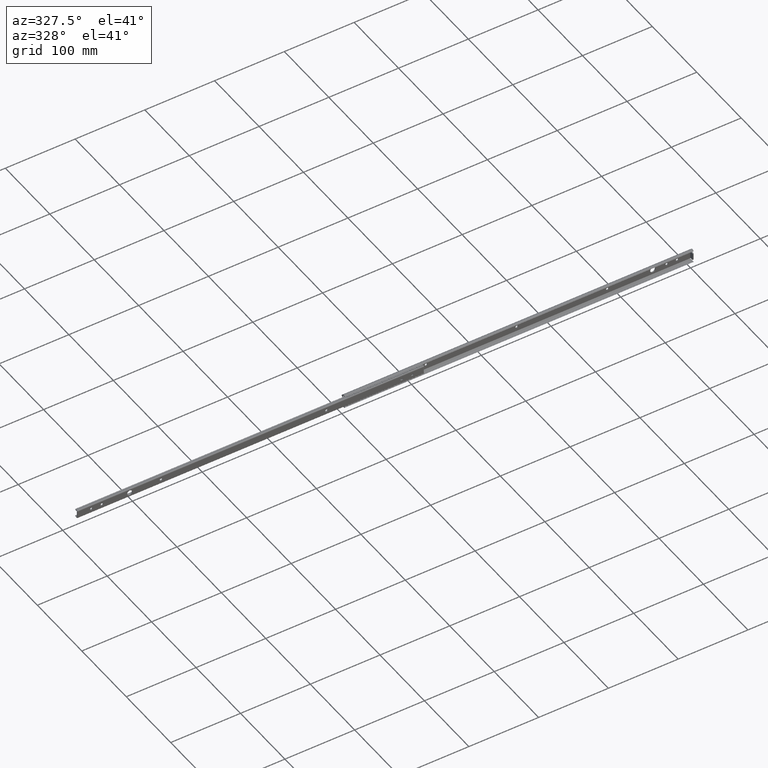
[diagram: clean part render]
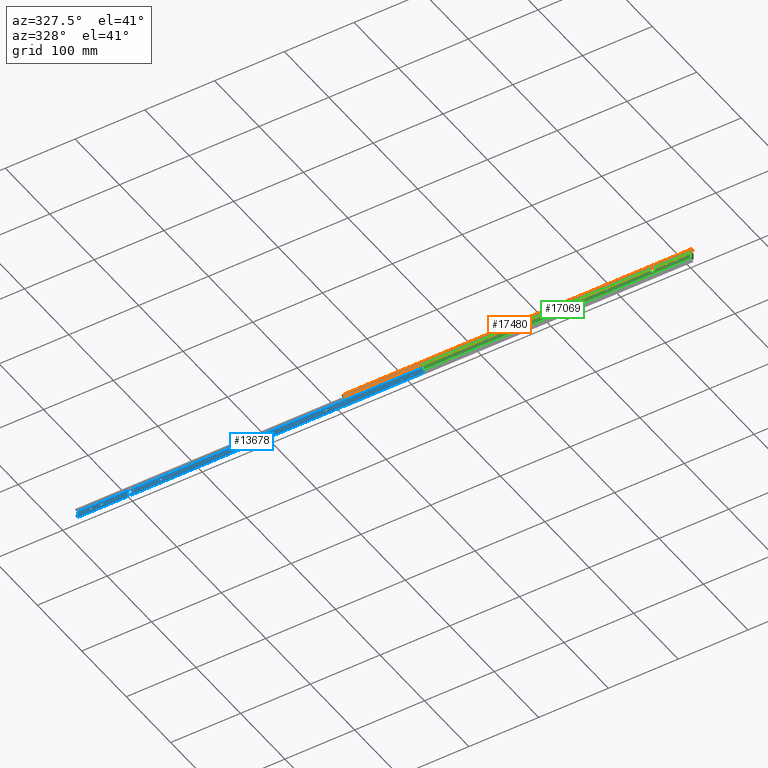
[diagram: same view with three faces highlighted in distinct colors, each labeled with its STEP entity id]
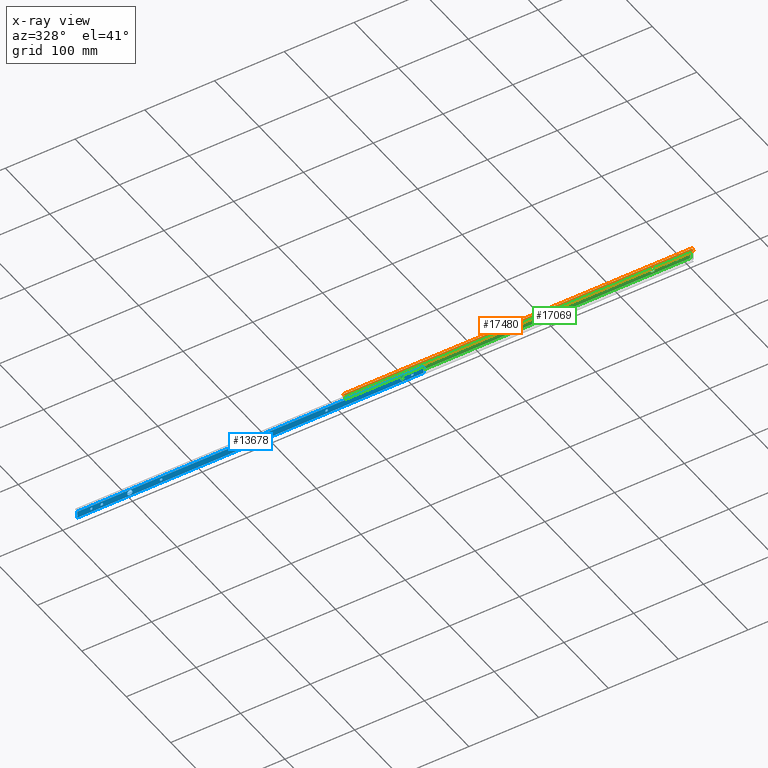
[diagram: x-ray of the same camera — body ghosted, the three highlighted faces saturated]
A machine part, auxiliary view with three faces highlighted in distinct colors.
The next image is the same camera in x-ray (body ghosted, the three faces saturated) — at least one of them is partly hidden behind the body in this view.
Their STEP definitions:

[orange] entity #17480 — the highlighted face is a freeform B-spline surface patch.
#15585=CARTESIAN_POINT('',(500.0,-6.945557355833350,8.728427000000000));
#15586=VERTEX_POINT('',#15585);
#15592=CARTESIAN_POINT('',(499.978470017581000,-7.078071239486509,8.522037986978859));
#15593=VERTEX_POINT('',#15592);
#15594=CARTESIAN_POINT('',(500.0,-6.945557355833300,8.728427000000000));
#15595=CARTESIAN_POINT('',(500.0,-6.992917200193229,8.660929247621526));
#15596=CARTESIAN_POINT('',(499.993242560337420,-7.037063546604345,8.592073159680135));
#15597=CARTESIAN_POINT('',(499.978470017581000,-7.078071239486509,8.522037986978859));
#15598=QUASI_UNIFORM_CURVE('',3,(#15594,#15595,#15596,#15597),.UNSPECIFIED.,.F.,.U.);
#15599=EDGE_CURVE('',#15586,#15593,#15598,.T.);
#16081=CARTESIAN_POINT('',(0.0,-7.078071239486619,8.522037986978919));
#16082=VERTEX_POINT('',#16081);
#16088=CARTESIAN_POINT('',(0.0,-2.466980046918090,9.201560556579119));
#16089=VERTEX_POINT('',#16088);
#16090=CARTESIAN_POINT('',(0.0,-2.466980046918093,9.201560556579118));
#16091=CARTESIAN_POINT('',(0.0,-3.517366435705748,10.177073308125911));
#16092=CARTESIAN_POINT('',(0.0,-4.935554769061138,9.968079180659549));
#16093=CARTESIAN_POINT('',(0.0,-6.353743102416529,9.759085053193191));
#16094=CARTESIAN_POINT('',(0.0,-7.078071239486623,8.522037986978921));
#16102=(BOUNDED_CURVE()B_SPLINE_CURVE(2,(#16090,#16091,#16092,#16093,#16094),.UNSPECIFIED.,.F.,.U.)B_SPLINE_CURVE_WITH_KNOTS((3,2,3),(0.0,0.500000000000000,1.0),.UNSPECIFIED.)CURVE()GEOMETRIC_REPRESENTATION_ITEM()RATIONAL_B_SPLINE_CURVE((1.0,0.901581321800918,1.0,0.901581321800918,1.0))REPRESENTATION_ITEM(''));
#16103=EDGE_CURVE('',#16089,#16082,#16102,.T.);
#17369=CARTESIAN_POINT('',(500.0,-2.466980046918005,9.201560556579020));
#17370=VERTEX_POINT('',#17369);
#17371=CARTESIAN_POINT('',(500.0,-2.466980046918005,9.201560556579020));
#17372=CARTESIAN_POINT('',(500.0,-3.462608644127085,10.126218761168957));
#17373=CARTESIAN_POINT('',(500.0,-4.813864011567887,9.983467120693515));
#17374=CARTESIAN_POINT('',(500.0,-6.165119379008688,9.840715480218075));
#17375=CARTESIAN_POINT('',(500.0,-6.945557355833357,8.728427000000005));
#17383=(BOUNDED_CURVE()B_SPLINE_CURVE(2,(#17371,#17372,#17373,#17374,#17375),.UNSPECIFIED.,.F.,.U.)B_SPLINE_CURVE_WITH_KNOTS((3,2,3),(0.0,0.500000000000000,1.0),.UNSPECIFIED.)CURVE()GEOMETRIC_REPRESENTATION_ITEM()RATIONAL_B_SPLINE_CURVE((1.0,0.910272297567768,1.0,0.910272297567768,1.0))REPRESENTATION_ITEM(''));
#17384=EDGE_CURVE('',#17370,#15586,#17383,.T.);
#17447=CARTESIAN_POINT('',(500.0,-2.466980046918005,9.201560556579020));
#17448=CARTESIAN_POINT('',(0.0,-2.466980046918090,9.201560556579119));
#17449=QUASI_UNIFORM_CURVE('',1,(#17447,#17448),.UNSPECIFIED.,.F.,.U.);
#17450=EDGE_CURVE('',#17370,#16089,#17449,.T.);
#17455=CARTESIAN_POINT('',(512.500000000000110,-2.393046872449931,9.130495459935300));
#17456=CARTESIAN_POINT('',(-12.812500000000000,-2.393046872449931,9.130495459935300));
#17457=CARTESIAN_POINT('',(512.500000000000110,-5.358479045898496,12.080467124452287));
#17458=CARTESIAN_POINT('',(-12.812500000000000,-5.358479045898496,12.080467124452287));
#17459=CARTESIAN_POINT('',(512.500000000000230,-7.186944746307169,8.318441874775456));
#17460=CARTESIAN_POINT('',(-12.812500000000004,-7.186944746307169,8.318441874775456));
#17468=(BOUNDED_SURFACE()B_SPLINE_SURFACE(1,2,((#17455,#17457,#17459),(#17456,#17458,#17460)),.UNSPECIFIED.,.F.,.F.,.U.)B_SPLINE_SURFACE_WITH_KNOTS((2,2),(3,3),(0.0,525.312500000000230),(0.0,6.149971177053697),.UNSPECIFIED.)GEOMETRIC_REPRESENTATION_ITEM()RATIONAL_B_SPLINE_SURFACE(((1.0,0.581021946329816,0.999362504122286),(1.0,0.581021946329816,0.999362504122286)))REPRESENTATION_ITEM('')SURFACE());
#17469=ORIENTED_EDGE('',*,*,#15599,.F.);
#17470=ORIENTED_EDGE('',*,*,#17384,.F.);
#17471=ORIENTED_EDGE('',*,*,#17450,.T.);
#17472=ORIENTED_EDGE('',*,*,#16103,.T.);
#17473=CARTESIAN_POINT('',(499.978470017581000,-7.078071239486509,8.522037986978859));
#17474=CARTESIAN_POINT('',(0.0,-7.078071239486619,8.522037986978919));
#17475=QUASI_UNIFORM_CURVE('',1,(#17473,#17474),.UNSPECIFIED.,.F.,.U.);
#17476=EDGE_CURVE('',#15593,#16082,#17475,.T.);
#17477=ORIENTED_EDGE('',*,*,#17476,.F.);
#17478=EDGE_LOOP('',(#17469,#17470,#17471,#17472,#17477));
#17479=FACE_OUTER_BOUND('',#17478,.T.);
#17480=ADVANCED_FACE('',(#17479),#17468,.T.);

[blue] entity #13678 — the highlighted face is a freeform B-spline surface patch.
#11538=CARTESIAN_POINT('',(-312.649861019115920,-8.0,0.031851862402120));
#11539=VERTEX_POINT('',#11538);
#11545=CARTESIAN_POINT('',(-309.0,-8.0,-3.650000000000000));
#11546=VERTEX_POINT('',#11545);
#11547=CARTESIAN_POINT('',(-312.649861019115800,-8.0,0.031851862402120));
#11548=CARTESIAN_POINT('',(-312.649999999999980,-8.0,0.015926238329063));
#11549=CARTESIAN_POINT('',(-312.649999999999980,-8.0,0.0));
#11550=CARTESIAN_POINT('',(-312.650000000000030,-8.0,-3.650000000000000));
#11551=CARTESIAN_POINT('',(-309.0,-8.0,-3.650000000000000));
#11559=(BOUNDED_CURVE()B_SPLINE_CURVE(2,(#11547,#11548,#11549,#11550,#11551),.UNSPECIFIED.,.F.,.U.)B_SPLINE_CURVE_WITH_KNOTS((3,2,3),(0.248460104908964,0.250000000000000,0.500000000000000),.UNSPECIFIED.)CURVE()GEOMETRIC_REPRESENTATION_ITEM()RATIONAL_B_SPLINE_CURVE((0.996414026350698,0.998195900680606,1.0,0.707106781186547,1.0))REPRESENTATION_ITEM(''));
#11560=EDGE_CURVE('',#11539,#11546,#11559,.T.);
#11562=CARTESIAN_POINT('',(-305.378228320501990,-8.0,-0.453067215307064));
#11563=VERTEX_POINT('',#11562);
#11564=CARTESIAN_POINT('',(-309.0,-8.0,-3.650000000000000));
#11565=CARTESIAN_POINT('',(-305.778150123286200,-8.0,-3.650000000000000));
#11566=CARTESIAN_POINT('',(-305.378228320501990,-8.0,-0.453067215307064));
#11574=(BOUNDED_CURVE()B_SPLINE_CURVE(2,(#11564,#11565,#11566),.UNSPECIFIED.,.F.,.U.)B_SPLINE_CURVE_WITH_KNOTS((3,3),(0.500000000000000,0.728526070310744),.UNSPECIFIED.)CURVE()GEOMETRIC_REPRESENTATION_ITEM()RATIONAL_B_SPLINE_CURVE((1.0,0.732265054735587,0.954005428880282))REPRESENTATION_ITEM(''));
#11575=EDGE_CURVE('',#11546,#11563,#11574,.T.);
#11625=CARTESIAN_POINT('',(-309.0,-8.0,3.650000000000000));
#11626=VERTEX_POINT('',#11625);
#11627=CARTESIAN_POINT('',(-305.378228320502050,-8.0,-0.453067215307064));
#11628=CARTESIAN_POINT('',(-305.350000000000020,-8.0,-0.227412993303262));
#11629=CARTESIAN_POINT('',(-305.350000000000020,-8.0,0.0));
#11630=CARTESIAN_POINT('',(-305.350000000000080,-8.0,3.650000000000000));
#11631=CARTESIAN_POINT('',(-309.0,-8.0,3.650000000000000));
#11639=(BOUNDED_CURVE()B_SPLINE_CURVE(2,(#11627,#11628,#11629,#11630,#11631),.UNSPECIFIED.,.F.,.U.)B_SPLINE_CURVE_WITH_KNOTS((3,2,3),(0.728526070310745,0.750000000000000,1.0),.UNSPECIFIED.)CURVE()GEOMETRIC_REPRESENTATION_ITEM()RATIONAL_B_SPLINE_CURVE((0.954005428880283,0.974841726450961,1.0,0.707106781186547,1.0))REPRESENTATION_ITEM(''));
#11640=EDGE_CURVE('',#11563,#11626,#11639,.T.);
#11642=CARTESIAN_POINT('',(-309.0,-8.0,3.650000000000000));
#11643=CARTESIAN_POINT('',(-312.618285903140420,-8.0,3.650000000000000));
#11644=CARTESIAN_POINT('',(-312.649861019115860,-8.0,0.031851862402120));
#11652=(BOUNDED_CURVE()B_SPLINE_CURVE(2,(#11642,#11643,#11644),.UNSPECIFIED.,.F.,.U.)B_SPLINE_CURVE_WITH_KNOTS((3,3),(0.0,0.248460104908964),.UNSPECIFIED.)CURVE()GEOMETRIC_REPRESENTATION_ITEM()RATIONAL_B_SPLINE_CURVE((1.0,0.708910880505941,0.996414026350697))REPRESENTATION_ITEM(''));
#11653=EDGE_CURVE('',#11626,#11539,#11652,.T.);
#11724=CARTESIAN_POINT('',(-365.599939076835310,-8.0,0.013962464515744));
#11725=VERTEX_POINT('',#11724);
#11731=CARTESIAN_POINT('',(-364.0,-8.0,-1.600000000000000));
#11732=VERTEX_POINT('',#11731);
#11733=CARTESIAN_POINT('',(-365.599939076835260,-8.0,0.013962464515744));
#11734=CARTESIAN_POINT('',(-365.600000000000080,-8.0,0.006981369031909));
#11735=CARTESIAN_POINT('',(-365.600000000000020,-8.0,0.0));
#11736=CARTESIAN_POINT('',(-365.600000000000020,-8.0,-1.600000000000000));
#11737=CARTESIAN_POINT('',(-364.0,-8.0,-1.600000000000000));
#11745=(BOUNDED_CURVE()B_SPLINE_CURVE(2,(#11733,#11734,#11735,#11736,#11737),.UNSPECIFIED.,.F.,.U.)B_SPLINE_CURVE_WITH_KNOTS((3,2,3),(0.248460103965535,0.250000000000000,0.500000000000000),.UNSPECIFIED.)CURVE()GEOMETRIC_REPRESENTATION_ITEM()RATIONAL_B_SPLINE_CURVE((0.996414024167337,0.998195899575310,1.0,0.707106781186548,1.0))REPRESENTATION_ITEM(''));
#11746=EDGE_CURVE('',#11725,#11732,#11745,.T.);
#11748=CARTESIAN_POINT('',(-362.412374062131220,-8.0,-0.198604837317776));
#11749=VERTEX_POINT('',#11748);
#11750=CARTESIAN_POINT('',(-364.0,-8.0,-1.600000000000000));
#11751=CARTESIAN_POINT('',(-362.587682300704610,-8.0,-1.600000000000000));
#11752=CARTESIAN_POINT('',(-362.412374062131160,-8.0,-0.198604837317776));
#11760=(BOUNDED_CURVE()B_SPLINE_CURVE(2,(#11750,#11751,#11752),.UNSPECIFIED.,.F.,.U.)B_SPLINE_CURVE_WITH_KNOTS((3,3),(0.500000000000000,0.728526063808097),.UNSPECIFIED.)CURVE()GEOMETRIC_REPRESENTATION_ITEM()RATIONAL_B_SPLINE_CURVE((1.0,0.732265062353913,0.954005416261158))REPRESENTATION_ITEM(''));
#11761=EDGE_CURVE('',#11732,#11749,#11760,.T.);
#11811=CARTESIAN_POINT('',(-364.0,-8.0,1.600000000000000));
#11812=VERTEX_POINT('',#11811);
#11813=CARTESIAN_POINT('',(-362.412374062131220,-8.0,-0.198604837317776));
#11814=CARTESIAN_POINT('',(-362.399999999999980,-8.000000000000002,-0.099687918441536));
#11815=CARTESIAN_POINT('',(-362.399999999999980,-8.0,0.0));
#11816=CARTESIAN_POINT('',(-362.399999999999920,-8.0,1.600000000000000));
#11817=CARTESIAN_POINT('',(-364.0,-8.0,1.600000000000000));
#11825=(BOUNDED_CURVE()B_SPLINE_CURVE(2,(#11813,#11814,#11815,#11816,#11817),.UNSPECIFIED.,.F.,.U.)B_SPLINE_CURVE_WITH_KNOTS((3,2,3),(0.728526063808097,0.750000000000000,1.0),.UNSPECIFIED.)CURVE()GEOMETRIC_REPRESENTATION_ITEM()RATIONAL_B_SPLINE_CURVE((0.954005416261159,0.974841718832636,1.0,0.707106781186548,1.0))REPRESENTATION_ITEM(''));
#11826=EDGE_CURVE('',#11749,#11812,#11825,.T.);
#11828=CARTESIAN_POINT('',(-364.0,-8.0,1.600000000000000));
#11829=CARTESIAN_POINT('',(-365.586097921648220,-8.000000000000002,1.600000000000001));
#11830=CARTESIAN_POINT('',(-365.599939076835310,-8.0,0.013962464515744));
#11838=(BOUNDED_CURVE()B_SPLINE_CURVE(2,(#11828,#11829,#11830),.UNSPECIFIED.,.F.,.U.)B_SPLINE_CURVE_WITH_KNOTS((3,3),(0.0,0.248460103965535),.UNSPECIFIED.)CURVE()GEOMETRIC_REPRESENTATION_ITEM()RATIONAL_B_SPLINE_CURVE((1.0,0.708910881611238,0.996414024167337))REPRESENTATION_ITEM(''));
#11839=EDGE_CURVE('',#11812,#11725,#11838,.T.);
#11872=CARTESIAN_POINT('',(95.699999999999989,-8.000000000000091,-1.600000000000000));
#11873=VERTEX_POINT('',#11872);
#11879=CARTESIAN_POINT('',(96.299999999999997,-8.0,-1.600000000000000));
#11880=VERTEX_POINT('',#11879);
#11881=CARTESIAN_POINT('',(95.699999999999989,-8.000000000000091,-1.600000000000000));
#11882=CARTESIAN_POINT('',(96.299999999999997,-8.0,-1.600000000000000));
#11883=QUASI_UNIFORM_CURVE('',1,(#11881,#11882),.UNSPECIFIED.,.F.,.U.);
#11884=EDGE_CURVE('',#11873,#11880,#11883,.T.);
#11929=CARTESIAN_POINT('',(95.699999999999989,-8.0,1.599999999999910));
#11930=VERTEX_POINT('',#11929);
#11936=CARTESIAN_POINT('',(95.699999999999989,-8.0,1.600000000000000));
#11937=CARTESIAN_POINT('',(94.099999999999980,-8.0,1.600000000000000));
#11938=CARTESIAN_POINT('',(94.099999999999994,-8.0,0.0));
#11939=CARTESIAN_POINT('',(94.099999999999980,-8.0,-1.600000000000000));
#11940=CARTESIAN_POINT('',(95.699999999999989,-8.0,-1.600000000000000));
#11948=(BOUNDED_CURVE()B_SPLINE_CURVE(2,(#11936,#11937,#11938,#11939,#11940),.UNSPECIFIED.,.F.,.U.)B_SPLINE_CURVE_WITH_KNOTS((3,2,3),(0.0,0.500000000000000,1.0),.UNSPECIFIED.)CURVE()GEOMETRIC_REPRESENTATION_ITEM()RATIONAL_B_SPLINE_CURVE((1.0,0.707106781186548,1.0,0.707106781186548,1.0))REPRESENTATION_ITEM(''));
#11949=EDGE_CURVE('',#11930,#11873,#11948,.T.);
#11967=CARTESIAN_POINT('',(96.299999999999997,-8.0,1.599999999999910));
#11968=VERTEX_POINT('',#11967);
#11974=CARTESIAN_POINT('',(96.299999999999997,-8.0,1.599999999999910));
#11975=CARTESIAN_POINT('',(95.699999999999989,-8.0,1.599999999999910));
#11976=QUASI_UNIFORM_CURVE('',1,(#11974,#11975),.UNSPECIFIED.,.F.,.U.);
#11977=EDGE_CURVE('',#11968,#11930,#11976,.T.);
#12017=CARTESIAN_POINT('',(96.299999999999997,-8.0,-1.600000000000000));
#12018=CARTESIAN_POINT('',(97.899999999999991,-8.0,-1.600000000000000));
#12019=CARTESIAN_POINT('',(97.900000000000006,-8.0,0.0));
#12020=CARTESIAN_POINT('',(97.899999999999991,-8.0,1.600000000000000));
#12021=CARTESIAN_POINT('',(96.299999999999997,-8.0,1.600000000000000));
#12029=(BOUNDED_CURVE()B_SPLINE_CURVE(2,(#12017,#12018,#12019,#12020,#12021),.UNSPECIFIED.,.F.,.U.)B_SPLINE_CURVE_WITH_KNOTS((3,2,3),(0.0,0.500000000000000,1.0),.UNSPECIFIED.)CURVE()GEOMETRIC_REPRESENTATION_ITEM()RATIONAL_B_SPLINE_CURVE((1.0,0.707106781186548,1.0,0.707106781186548,1.0))REPRESENTATION_ITEM(''));
#12030=EDGE_CURVE('',#11880,#11968,#12029,.T.);
#12050=CARTESIAN_POINT('',(80.699999999999989,-8.000000000000091,-1.600000000000000));
#12051=VERTEX_POINT('',#12050);
#12057=CARTESIAN_POINT('',(81.299999999999997,-8.0,-1.600000000000000));
#12058=VERTEX_POINT('',#12057);
#12059=CARTESIAN_POINT('',(80.699999999999989,-8.000000000000091,-1.600000000000000));
#12060=CARTESIAN_POINT('',(81.299999999999997,-8.0,-1.600000000000000));
#12061=QUASI_UNIFORM_CURVE('',1,(#12059,#12060),.UNSPECIFIED.,.F.,.U.);
#12062=EDGE_CURVE('',#12051,#12058,#12061,.T.);
#12107=CARTESIAN_POINT('',(80.699999999999989,-8.0,1.599999999999910));
#12108=VERTEX_POINT('',#12107);
#12114=CARTESIAN_POINT('',(80.699999999999989,-8.0,1.600000000000000));
#12115=CARTESIAN_POINT('',(79.099999999999994,-8.0,1.600000000000000));
#12116=CARTESIAN_POINT('',(79.099999999999994,-8.0,0.0));
#12117=CARTESIAN_POINT('',(79.099999999999994,-8.0,-1.600000000000000));
#12118=CARTESIAN_POINT('',(80.699999999999989,-8.0,-1.600000000000000));
#12126=(BOUNDED_CURVE()B_SPLINE_CURVE(2,(#12114,#12115,#12116,#12117,#12118),.UNSPECIFIED.,.F.,.U.)B_SPLINE_CURVE_WITH_KNOTS((3,2,3),(0.0,0.500000000000000,1.0),.UNSPECIFIED.)CURVE()GEOMETRIC_REPRESENTATION_ITEM()RATIONAL_B_SPLINE_CURVE((1.0,0.707106781186548,1.0,0.707106781186548,1.0))REPRESENTATION_ITEM(''));
#12127=EDGE_CURVE('',#12108,#12051,#12126,.T.);
#12145=CARTESIAN_POINT('',(81.299999999999997,-8.0,1.599999999999910));
#12146=VERTEX_POINT('',#12145);
#12152=CARTESIAN_POINT('',(81.299999999999997,-8.0,1.599999999999910));
#12153=CARTESIAN_POINT('',(80.699999999999989,-8.0,1.599999999999910));
#12154=QUASI_UNIFORM_CURVE('',1,(#12152,#12153),.UNSPECIFIED.,.F.,.U.);
#12155=EDGE_CURVE('',#12146,#12108,#12154,.T.);
#12195=CARTESIAN_POINT('',(81.299999999999997,-8.0,-1.600000000000000));
#12196=CARTESIAN_POINT('',(82.900000000000006,-8.0,-1.600000000000000));
#12197=CARTESIAN_POINT('',(82.900000000000006,-8.0,0.0));
#12198=CARTESIAN_POINT('',(82.900000000000006,-8.0,1.600000000000000));
#12199=CARTESIAN_POINT('',(81.299999999999997,-8.0,1.600000000000000));
#12207=(BOUNDED_CURVE()B_SPLINE_CURVE(2,(#12195,#12196,#12197,#12198,#12199),.UNSPECIFIED.,.F.,.U.)B_SPLINE_CURVE_WITH_KNOTS((3,2,3),(0.0,0.500000000000000,1.0),.UNSPECIFIED.)CURVE()GEOMETRIC_REPRESENTATION_ITEM()RATIONAL_B_SPLINE_CURVE((1.0,0.707106781186548,1.0,0.707106781186548,1.0))REPRESENTATION_ITEM(''));
#12208=EDGE_CURVE('',#12058,#12146,#12207,.T.);
#12228=CARTESIAN_POINT('',(-27.300000000000001,-8.000000000000091,-1.600000000000000));
#12229=VERTEX_POINT('',#12228);
#12235=CARTESIAN_POINT('',(-26.699999999999999,-8.0,-1.600000000000000));
#12236=VERTEX_POINT('',#12235);
#12237=CARTESIAN_POINT('',(-27.300000000000001,-8.000000000000091,-1.600000000000000));
#12238=CARTESIAN_POINT('',(-26.699999999999999,-8.0,-1.600000000000000));
#12239=QUASI_UNIFORM_CURVE('',1,(#12237,#12238),.UNSPECIFIED.,.F.,.U.);
#12240=EDGE_CURVE('',#12229,#12236,#12239,.T.);
#12285=CARTESIAN_POINT('',(-27.300000000000001,-8.0,1.599999999999910));
#12286=VERTEX_POINT('',#12285);
#12292=CARTESIAN_POINT('',(-27.300000000000001,-8.0,1.600000000000000));
#12293=CARTESIAN_POINT('',(-28.900000000000006,-8.0,1.600000000000000));
#12294=CARTESIAN_POINT('',(-28.899999999999999,-8.0,0.0));
#12295=CARTESIAN_POINT('',(-28.900000000000006,-8.0,-1.600000000000000));
#12296=CARTESIAN_POINT('',(-27.300000000000001,-8.0,-1.600000000000000));
#12304=(BOUNDED_CURVE()B_SPLINE_CURVE(2,(#12292,#12293,#12294,#12295,#12296),.UNSPECIFIED.,.F.,.U.)B_SPLINE_CURVE_WITH_KNOTS((3,2,3),(0.0,0.500000000000000,1.0),.UNSPECIFIED.)CURVE()GEOMETRIC_REPRESENTATION_ITEM()RATIONAL_B_SPLINE_CURVE((1.0,0.707106781186548,1.0,0.707106781186548,1.0))REPRESENTATION_ITEM(''));
#12305=EDGE_CURVE('',#12286,#12229,#12304,.T.);
#12323=CARTESIAN_POINT('',(-26.699999999999999,-8.0,1.599999999999910));
#12324=VERTEX_POINT('',#12323);
#12330=CARTESIAN_POINT('',(-26.699999999999999,-8.0,1.599999999999910));
#12331=CARTESIAN_POINT('',(-27.300000000000001,-8.0,1.599999999999910));
#12332=QUASI_UNIFORM_CURVE('',1,(#12330,#12331),.UNSPECIFIED.,.F.,.U.);
#12333=EDGE_CURVE('',#12324,#12286,#12332,.T.);
#12373=CARTESIAN_POINT('',(-26.699999999999999,-8.0,-1.600000000000000));
#12374=CARTESIAN_POINT('',(-25.099999999999994,-8.0,-1.600000000000000));
#12375=CARTESIAN_POINT('',(-25.100000000000001,-8.0,0.0));
#12376=CARTESIAN_POINT('',(-25.099999999999994,-8.0,1.600000000000000));
#12377=CARTESIAN_POINT('',(-26.699999999999999,-8.0,1.600000000000000));
#12385=(BOUNDED_CURVE()B_SPLINE_CURVE(2,(#12373,#12374,#12375,#12376,#12377),.UNSPECIFIED.,.F.,.U.)B_SPLINE_CURVE_WITH_KNOTS((3,2,3),(0.0,0.500000000000000,1.0),.UNSPECIFIED.)CURVE()GEOMETRIC_REPRESENTATION_ITEM()RATIONAL_B_SPLINE_CURVE((1.0,0.707106781186548,1.0,0.707106781186548,1.0))REPRESENTATION_ITEM(''));
#12386=EDGE_CURVE('',#12236,#12324,#12385,.T.);
#12406=CARTESIAN_POINT('',(-264.300000000000010,-8.000000000000091,-1.600000000000000));
#12407=VERTEX_POINT('',#12406);
#12413=CARTESIAN_POINT('',(-263.699999999999990,-8.0,-1.600000000000000));
#12414=VERTEX_POINT('',#12413);
#12415=CARTESIAN_POINT('',(-264.300000000000010,-8.000000000000091,-1.600000000000000));
#12416=CARTESIAN_POINT('',(-263.699999999999990,-8.0,-1.600000000000000));
#12417=QUASI_UNIFORM_CURVE('',1,(#12415,#12416),.UNSPECIFIED.,.F.,.U.);
#12418=EDGE_CURVE('',#12407,#12414,#12417,.T.);
#12463=CARTESIAN_POINT('',(-264.300000000000010,-8.0,1.599999999999910));
#12464=VERTEX_POINT('',#12463);
#12470=CARTESIAN_POINT('',(-264.300000000000010,-8.0,1.600000000000000));
#12471=CARTESIAN_POINT('',(-265.900000000000030,-8.0,1.600000000000000));
#12472=CARTESIAN_POINT('',(-265.899999999999980,-8.0,0.0));
#12473=CARTESIAN_POINT('',(-265.900000000000030,-8.0,-1.600000000000000));
#12474=CARTESIAN_POINT('',(-264.300000000000010,-8.0,-1.600000000000000));
#12482=(BOUNDED_CURVE()B_SPLINE_CURVE(2,(#12470,#12471,#12472,#12473,#12474),.UNSPECIFIED.,.F.,.U.)B_SPLINE_CURVE_WITH_KNOTS((3,2,3),(0.0,0.500000000000000,1.0),.UNSPECIFIED.)CURVE()GEOMETRIC_REPRESENTATION_ITEM()RATIONAL_B_SPLINE_CURVE((1.0,0.707106781186548,1.0,0.707106781186548,1.0))REPRESENTATION_ITEM(''));
#12483=EDGE_CURVE('',#12464,#12407,#12482,.T.);
#12501=CARTESIAN_POINT('',(-263.699999999999990,-8.0,1.599999999999910));
#12502=VERTEX_POINT('',#12501);
#12508=CARTESIAN_POINT('',(-263.699999999999990,-8.0,1.599999999999910));
#12509=CARTESIAN_POINT('',(-264.300000000000010,-8.0,1.599999999999910));
#12510=QUASI_UNIFORM_CURVE('',1,(#12508,#12509),.UNSPECIFIED.,.F.,.U.);
#12511=EDGE_CURVE('',#12502,#12464,#12510,.T.);
#12551=CARTESIAN_POINT('',(-263.699999999999990,-8.0,-1.600000000000000));
#12552=CARTESIAN_POINT('',(-262.099999999999970,-8.0,-1.600000000000000));
#12553=CARTESIAN_POINT('',(-262.100000000000020,-8.0,0.0));
#12554=CARTESIAN_POINT('',(-262.099999999999970,-8.0,1.600000000000000));
#12555=CARTESIAN_POINT('',(-263.699999999999990,-8.0,1.600000000000000));
#12563=(BOUNDED_CURVE()B_SPLINE_CURVE(2,(#12551,#12552,#12553,#12554,#12555),.UNSPECIFIED.,.F.,.U.)B_SPLINE_CURVE_WITH_KNOTS((3,2,3),(0.0,0.500000000000000,1.0),.UNSPECIFIED.)CURVE()GEOMETRIC_REPRESENTATION_ITEM()RATIONAL_B_SPLINE_CURVE((1.0,0.707106781186548,1.0,0.707106781186548,1.0))REPRESENTATION_ITEM(''));
#12564=EDGE_CURVE('',#12414,#12502,#12563,.T.);
#12584=CARTESIAN_POINT('',(-349.300000000000010,-8.000000000000091,-1.600000000000000));
#12585=VERTEX_POINT('',#12584);
#12591=CARTESIAN_POINT('',(-348.699999999999990,-8.0,-1.600000000000000));
#12592=VERTEX_POINT('',#12591);
#12593=CARTESIAN_POINT('',(-349.300000000000010,-8.000000000000091,-1.600000000000000));
#12594=CARTESIAN_POINT('',(-348.699999999999990,-8.0,-1.600000000000000));
#12595=QUASI_UNIFORM_CURVE('',1,(#12593,#12594),.UNSPECIFIED.,.F.,.U.);
#12596=EDGE_CURVE('',#12585,#12592,#12595,.T.);
#12641=CARTESIAN_POINT('',(-349.300000000000010,-8.0,1.599999999999910));
#12642=VERTEX_POINT('',#12641);
#12648=CARTESIAN_POINT('',(-349.300000000000010,-8.0,1.600000000000000));
#12649=CARTESIAN_POINT('',(-350.899999999999920,-8.0,1.600000000000000));
#12650=CARTESIAN_POINT('',(-350.899999999999980,-8.0,0.0));
#12651=CARTESIAN_POINT('',(-350.899999999999920,-8.0,-1.600000000000000));
#12652=CARTESIAN_POINT('',(-349.300000000000010,-8.0,-1.600000000000000));
#12660=(BOUNDED_CURVE()B_SPLINE_CURVE(2,(#12648,#12649,#12650,#12651,#12652),.UNSPECIFIED.,.F.,.U.)B_SPLINE_CURVE_WITH_KNOTS((3,2,3),(0.0,0.500000000000000,1.0),.UNSPECIFIED.)CURVE()GEOMETRIC_REPRESENTATION_ITEM()RATIONAL_B_SPLINE_CURVE((1.0,0.707106781186548,1.0,0.707106781186548,1.0))REPRESENTATION_ITEM(''));
#12661=EDGE_CURVE('',#12642,#12585,#12660,.T.);
#12679=CARTESIAN_POINT('',(-348.699999999999990,-8.0,1.599999999999910));
#12680=VERTEX_POINT('',#12679);
#12686=CARTESIAN_POINT('',(-348.699999999999990,-8.0,1.599999999999910));
#12687=CARTESIAN_POINT('',(-349.300000000000010,-8.0,1.599999999999910));
#12688=QUASI_UNIFORM_CURVE('',1,(#12686,#12687),.UNSPECIFIED.,.F.,.U.);
#12689=EDGE_CURVE('',#12680,#12642,#12688,.T.);
#12729=CARTESIAN_POINT('',(-348.699999999999990,-8.0,-1.600000000000000));
#12730=CARTESIAN_POINT('',(-347.100000000000080,-8.0,-1.600000000000000));
#12731=CARTESIAN_POINT('',(-347.100000000000020,-8.0,0.0));
#12732=CARTESIAN_POINT('',(-347.100000000000080,-8.0,1.600000000000000));
#12733=CARTESIAN_POINT('',(-348.699999999999990,-8.0,1.600000000000000));
#12741=(BOUNDED_CURVE()B_SPLINE_CURVE(2,(#12729,#12730,#12731,#12732,#12733),.UNSPECIFIED.,.F.,.U.)B_SPLINE_CURVE_WITH_KNOTS((3,2,3),(0.0,0.500000000000000,1.0),.UNSPECIFIED.)CURVE()GEOMETRIC_REPRESENTATION_ITEM()RATIONAL_B_SPLINE_CURVE((1.0,0.707106781186548,1.0,0.707106781186548,1.0))REPRESENTATION_ITEM(''));
#12742=EDGE_CURVE('',#12592,#12680,#12741,.T.);
#12762=CARTESIAN_POINT('',(112.0,-8.000000000000119,4.300000000000000));
#12763=VERTEX_POINT('',#12762);
#12779=CARTESIAN_POINT('',(112.0,-8.000000000000119,-4.300000000000000));
#12780=VERTEX_POINT('',#12779);
#12781=CARTESIAN_POINT('',(112.0,-8.000000000000119,-4.300000000000000));
#12782=CARTESIAN_POINT('',(112.0,-8.000000000000119,4.300000000000000));
#12783=QUASI_UNIFORM_CURVE('',1,(#12781,#12782),.UNSPECIFIED.,.F.,.U.);
#12784=EDGE_CURVE('',#12780,#12763,#12783,.T.);
#12814=CARTESIAN_POINT('',(113.0,-8.000000000000119,4.641039999999910));
#12815=VERTEX_POINT('',#12814);
#12816=CARTESIAN_POINT('',(111.800000000000000,-8.000000000000119,4.300000000000000));
#12817=VERTEX_POINT('',#12816);
#12818=CARTESIAN_POINT('',(113.0,-8.000000000000119,4.641039999999910));
#12819=CARTESIAN_POINT('',(111.800000000000000,-8.000000000000119,4.300000000000000));
#12820=QUASI_UNIFORM_CURVE('',1,(#12818,#12819),.UNSPECIFIED.,.F.,.U.);
#12821=EDGE_CURVE('',#12815,#12817,#12820,.T.);
#12850=CARTESIAN_POINT('',(111.800000000000000,-8.000000000000119,-4.300000000000000));
#12851=VERTEX_POINT('',#12850);
#12852=CARTESIAN_POINT('',(113.0,-8.000000000000119,-4.641040000000000));
#12853=VERTEX_POINT('',#12852);
#12854=CARTESIAN_POINT('',(111.800000000000000,-8.000000000000119,-4.300000000000000));
#12855=CARTESIAN_POINT('',(113.0,-8.000000000000119,-4.641040000000000));
#12856=QUASI_UNIFORM_CURVE('',1,(#12854,#12855),.UNSPECIFIED.,.F.,.U.);
#12857=EDGE_CURVE('',#12851,#12853,#12856,.T.);
#12952=CARTESIAN_POINT('',(112.0,-8.000000000000119,-4.300000000000000));
#12953=CARTESIAN_POINT('',(111.800000000000000,-8.000000000000119,-4.300000000000000));
#12954=QUASI_UNIFORM_CURVE('',1,(#12952,#12953),.UNSPECIFIED.,.F.,.U.);
#12955=EDGE_CURVE('',#12780,#12851,#12954,.T.);
#12968=CARTESIAN_POINT('',(111.800000000000000,-8.000000000000119,4.300000000000000));
#12969=CARTESIAN_POINT('',(112.0,-8.000000000000119,4.300000000000000));
#12970=QUASI_UNIFORM_CURVE('',1,(#12968,#12969),.UNSPECIFIED.,.F.,.U.);
#12971=EDGE_CURVE('',#12817,#12763,#12970,.T.);
#13107=CARTESIAN_POINT('',(-384.0,-8.0,-4.641040000000000));
#13108=VERTEX_POINT('',#13107);
#13124=CARTESIAN_POINT('',(-384.0,-8.000000000000091,4.641039999999900));
#13125=VERTEX_POINT('',#13124);
#13126=CARTESIAN_POINT('',(-384.0,-8.0,-4.641040000000000));
#13127=CARTESIAN_POINT('',(-384.0,-8.000000000000091,4.641039999999900));
#13128=QUASI_UNIFORM_CURVE('',1,(#13126,#13127),.UNSPECIFIED.,.F.,.U.);
#13129=EDGE_CURVE('',#13108,#13125,#13128,.T.);
#13385=CARTESIAN_POINT('',(113.0,-8.000000000000119,-4.641040000000000));
#13386=CARTESIAN_POINT('',(-384.0,-8.0,-4.641040000000000));
#13387=QUASI_UNIFORM_CURVE('',1,(#13385,#13386),.UNSPECIFIED.,.F.,.U.);
#13388=EDGE_CURVE('',#12853,#13108,#13387,.T.);
#13422=CARTESIAN_POINT('',(113.0,-8.000000000000119,4.641039999999910));
#13423=CARTESIAN_POINT('',(-384.0,-8.000000000000091,4.641039999999900));
#13424=QUASI_UNIFORM_CURVE('',1,(#13422,#13423),.UNSPECIFIED.,.F.,.U.);
#13425=EDGE_CURVE('',#12815,#13125,#13424,.T.);
#13621=CARTESIAN_POINT('',(-408.825149036717620,-8.000000000000091,-5.104679757713888));
#13622=CARTESIAN_POINT('',(-408.825149036717620,-8.000000000000091,5.104679425760749));
#13623=CARTESIAN_POINT('',(137.825162367296290,-8.000000000000091,-5.104679757713888));
#13624=CARTESIAN_POINT('',(137.825162367296290,-8.000000000000091,5.104679425760749));
#13625=B_SPLINE_SURFACE_WITH_KNOTS('',1,1,((#13621,#13623),(#13622,#13624)),.UNSPECIFIED.,.F.,.F.,.U.,(2,2),(2,2),(0.0,10.209359183474641),(0.0,546.650311404014020),.UNSPECIFIED.);
#13626=ORIENTED_EDGE('',*,*,#12955,.F.);
#13627=ORIENTED_EDGE('',*,*,#12784,.T.);
#13628=ORIENTED_EDGE('',*,*,#12971,.F.);
#13629=ORIENTED_EDGE('',*,*,#12821,.F.);
#13630=ORIENTED_EDGE('',*,*,#13425,.T.);
#13631=ORIENTED_EDGE('',*,*,#13129,.F.);
#13632=ORIENTED_EDGE('',*,*,#13388,.F.);
#13633=ORIENTED_EDGE('',*,*,#12857,.F.);
#13634=EDGE_LOOP('',(#13626,#13627,#13628,#13629,#13630,#13631,#13632,#13633));
#13635=FACE_OUTER_BOUND('',#13634,.T.);
#13636=ORIENTED_EDGE('',*,*,#12564,.F.);
#13637=ORIENTED_EDGE('',*,*,#12418,.F.);
#13638=ORIENTED_EDGE('',*,*,#12483,.F.);
#13639=ORIENTED_EDGE('',*,*,#12511,.F.);
#13640=EDGE_LOOP('',(#13636,#13637,#13638,#13639));
#13641=FACE_BOUND('',#13640,.T.);
#13642=ORIENTED_EDGE('',*,*,#12742,.F.);
#13643=ORIENTED_EDGE('',*,*,#12596,.F.);
#13644=ORIENTED_EDGE('',*,*,#12661,.F.);
#13645=ORIENTED_EDGE('',*,*,#12689,.F.);
#13646=EDGE_LOOP('',(#13642,#13643,#13644,#13645));
#13647=FACE_BOUND('',#13646,.T.);
#13648=ORIENTED_EDGE('',*,*,#12208,.F.);
#13649=ORIENTED_EDGE('',*,*,#12062,.F.);
#13650=ORIENTED_EDGE('',*,*,#12127,.F.);
#13651=ORIENTED_EDGE('',*,*,#12155,.F.);
#13652=EDGE_LOOP('',(#13648,#13649,#13650,#13651));
#13653=FACE_BOUND('',#13652,.T.);
#13654=ORIENTED_EDGE('',*,*,#12386,.F.);
#13655=ORIENTED_EDGE('',*,*,#12240,.F.);
#13656=ORIENTED_EDGE('',*,*,#12305,.F.);
#13657=ORIENTED_EDGE('',*,*,#12333,.F.);
#13658=EDGE_LOOP('',(#13654,#13655,#13656,#13657));
#13659=FACE_BOUND('',#13658,.T.);
#13660=ORIENTED_EDGE('',*,*,#12030,.F.);
#13661=ORIENTED_EDGE('',*,*,#11884,.F.);
#13662=ORIENTED_EDGE('',*,*,#11949,.F.);
#13663=ORIENTED_EDGE('',*,*,#11977,.F.);
#13664=EDGE_LOOP('',(#13660,#13661,#13662,#13663));
#13665=FACE_BOUND('',#13664,.T.);
#13666=ORIENTED_EDGE('',*,*,#11839,.F.);
#13667=ORIENTED_EDGE('',*,*,#11826,.F.);
#13668=ORIENTED_EDGE('',*,*,#11761,.F.);
#13669=ORIENTED_EDGE('',*,*,#11746,.F.);
#13670=EDGE_LOOP('',(#13666,#13667,#13668,#13669));
#13671=FACE_BOUND('',#13670,.T.);
#13672=ORIENTED_EDGE('',*,*,#11653,.F.);
#13673=ORIENTED_EDGE('',*,*,#11640,.F.);
#13674=ORIENTED_EDGE('',*,*,#11575,.F.);
#13675=ORIENTED_EDGE('',*,*,#11560,.F.);
#13676=EDGE_LOOP('',(#13672,#13673,#13674,#13675));
#13677=FACE_BOUND('',#13676,.T.);
#13678=ADVANCED_FACE('',(#13635,#13641,#13647,#13653,#13659,#13665,#13671,#13677),#13625,.F.);

[green] entity #17069 — the highlighted face is a freeform B-spline surface patch.
#13742=CARTESIAN_POINT('',(18.411184761992871,-1.399999999999956,0.188854810572428));
#13743=VERTEX_POINT('',#13742);
#13744=CARTESIAN_POINT('',(20.0,-1.399999999999956,-1.600000000000000));
#13745=VERTEX_POINT('',#13744);
#13746=CARTESIAN_POINT('',(18.411184761992871,-1.399999999999956,0.188854810572428));
#13747=CARTESIAN_POINT('',(18.399999999999999,-1.399999999999956,0.094758626935972));
#13748=CARTESIAN_POINT('',(18.399999999999999,-1.399999999999956,0.0));
#13749=CARTESIAN_POINT('',(18.399999999999991,-1.399999999999956,-1.600000000000000));
#13750=CARTESIAN_POINT('',(20.0,-1.399999999999956,-1.600000000000000));
#13758=(BOUNDED_CURVE()B_SPLINE_CURVE(2,(#13746,#13747,#13748,#13749,#13750),.UNSPECIFIED.,.F.,.U.)B_SPLINE_CURVE_WITH_KNOTS((3,2,3),(0.729562466043829,0.750000000000000,1.0),.UNSPECIFIED.)CURVE()GEOMETRIC_REPRESENTATION_ITEM()RATIONAL_B_SPLINE_CURVE((0.956026739542822,0.976055939579871,1.0,0.707106781186548,1.0))REPRESENTATION_ITEM(''));
#13759=EDGE_CURVE('',#13743,#13745,#13758,.T.);
#13761=CARTESIAN_POINT('',(21.597015676147208,-1.399999999999956,-0.097677684964806));
#13762=VERTEX_POINT('',#13761);
#13763=CARTESIAN_POINT('',(20.0,-1.399999999999956,-1.600000000000000));
#13764=CARTESIAN_POINT('',(21.505129666052685,-1.399999999999956,-1.599999999999999));
#13765=CARTESIAN_POINT('',(21.597015676147208,-1.399999999999956,-0.097677684964806));
#13773=(BOUNDED_CURVE()B_SPLINE_CURVE(2,(#13763,#13764,#13765),.UNSPECIFIED.,.F.,.U.)B_SPLINE_CURVE_WITH_KNOTS((3,3),(0.0,0.239332957550938),.UNSPECIFIED.)CURVE()GEOMETRIC_REPRESENTATION_ITEM()RATIONAL_B_SPLINE_CURVE((1.0,0.719603998779049,0.976072031619432))REPRESENTATION_ITEM(''));
#13774=EDGE_CURVE('',#13745,#13762,#13773,.T.);
#13841=CARTESIAN_POINT('',(20.0,-1.399999999999956,1.600000000000000));
#13842=VERTEX_POINT('',#13841);
#13843=CARTESIAN_POINT('',(20.0,-1.399999999999956,1.600000000000000));
#13844=CARTESIAN_POINT('',(18.578920821747538,-1.399999999999955,1.600000000000000));
#13845=CARTESIAN_POINT('',(18.411184761992871,-1.399999999999956,0.188854810572428));
#13853=(BOUNDED_CURVE()B_SPLINE_CURVE(2,(#13843,#13844,#13845),.UNSPECIFIED.,.F.,.U.)B_SPLINE_CURVE_WITH_KNOTS((3,3),(0.500000000000000,0.729562466043829),.UNSPECIFIED.)CURVE()GEOMETRIC_REPRESENTATION_ITEM()RATIONAL_B_SPLINE_CURVE((1.0,0.731050841606676,0.956026739542822))REPRESENTATION_ITEM(''));
#13854=EDGE_CURVE('',#13842,#13743,#13853,.T.);
#13888=CARTESIAN_POINT('',(21.597015676147208,-1.399999999999956,-0.097677684964806));
#13889=CARTESIAN_POINT('',(21.600000000000001,-1.399999999999956,-0.048884443047646));
#13890=CARTESIAN_POINT('',(21.600000000000001,-1.399999999999956,0.0));
#13891=CARTESIAN_POINT('',(21.600000000000005,-1.399999999999956,1.600000000000000));
#13892=CARTESIAN_POINT('',(20.0,-1.399999999999956,1.600000000000000));
#13900=(BOUNDED_CURVE()B_SPLINE_CURVE(2,(#13888,#13889,#13890,#13891,#13892),.UNSPECIFIED.,.F.,.U.)B_SPLINE_CURVE_WITH_KNOTS((3,2,3),(0.239332957550938,0.250000000000000,0.500000000000000),.UNSPECIFIED.)CURVE()GEOMETRIC_REPRESENTATION_ITEM()RATIONAL_B_SPLINE_CURVE((0.976072031619432,0.987502782407498,1.0,0.707106781186548,1.0))REPRESENTATION_ITEM(''));
#13901=EDGE_CURVE('',#13762,#13842,#13900,.T.);
#13928=CARTESIAN_POINT('',(441.375515229027090,-1.399999999999956,0.430824958638111));
#13929=VERTEX_POINT('',#13928);
#13930=CARTESIAN_POINT('',(445.0,-1.399999999999956,-3.650000000000000));
#13931=VERTEX_POINT('',#13930);
#13932=CARTESIAN_POINT('',(441.375515229027140,-1.399999999999956,0.430824958638111));
#13933=CARTESIAN_POINT('',(441.350000000000020,-1.399999999999956,0.216168038893048));
#13934=CARTESIAN_POINT('',(441.350000000000020,-1.399999999999956,0.0));
#13935=CARTESIAN_POINT('',(441.349999999999910,-1.399999999999956,-3.650000000000000));
#13936=CARTESIAN_POINT('',(445.0,-1.399999999999956,-3.650000000000000));
#13944=(BOUNDED_CURVE()B_SPLINE_CURVE(2,(#13932,#13933,#13934,#13935,#13936),.UNSPECIFIED.,.F.,.U.)B_SPLINE_CURVE_WITH_KNOTS((3,2,3),(0.729562473315988,0.750000000000000,1.0),.UNSPECIFIED.)CURVE()GEOMETRIC_REPRESENTATION_ITEM()RATIONAL_B_SPLINE_CURVE((0.956026753796551,0.976055948099735,1.0,0.707106781186547,1.0))REPRESENTATION_ITEM(''));
#13945=EDGE_CURVE('',#13929,#13931,#13944,.T.);
#13947=CARTESIAN_POINT('',(448.643192014079320,-1.399999999999956,-0.222827171925204));
#13948=VERTEX_POINT('',#13947);
#13949=CARTESIAN_POINT('',(445.0,-1.399999999999956,-3.650000000000000));
#13950=CARTESIAN_POINT('',(448.433577139252460,-1.399999999999956,-3.650000000000000));
#13951=CARTESIAN_POINT('',(448.643192014079370,-1.399999999999956,-0.222827171925204));
#13959=(BOUNDED_CURVE()B_SPLINE_CURVE(2,(#13949,#13950,#13951),.UNSPECIFIED.,.F.,.U.)B_SPLINE_CURVE_WITH_KNOTS((3,3),(0.0,0.239332961993513),.UNSPECIFIED.)CURVE()GEOMETRIC_REPRESENTATION_ITEM()RATIONAL_B_SPLINE_CURVE((1.0,0.719603993574250,0.976072041140714))REPRESENTATION_ITEM(''));
#13960=EDGE_CURVE('',#13931,#13948,#13959,.T.);
#14027=CARTESIAN_POINT('',(445.0,-1.399999999999956,3.650000000000000));
#14028=VERTEX_POINT('',#14027);
#14029=CARTESIAN_POINT('',(445.0,-1.399999999999956,3.650000000000000));
#14030=CARTESIAN_POINT('',(441.758162984134340,-1.399999999999957,3.650000000000000));
#14031=CARTESIAN_POINT('',(441.375515229027200,-1.399999999999956,0.430824958638111));
#14039=(BOUNDED_CURVE()B_SPLINE_CURVE(2,(#14029,#14030,#14031),.UNSPECIFIED.,.F.,.U.)B_SPLINE_CURVE_WITH_KNOTS((3,3),(0.500000000000000,0.729562473315987),.UNSPECIFIED.)CURVE()GEOMETRIC_REPRESENTATION_ITEM()RATIONAL_B_SPLINE_CURVE((1.0,0.731050833086813,0.956026753796550))REPRESENTATION_ITEM(''));
#14040=EDGE_CURVE('',#14028,#13929,#14039,.T.);
#14074=CARTESIAN_POINT('',(448.643192014079370,-1.399999999999956,-0.222827171925204));
#14075=CARTESIAN_POINT('',(448.649999999999980,-1.399999999999956,-0.111517588670180));
#14076=CARTESIAN_POINT('',(448.649999999999980,-1.399999999999956,0.0));
#14077=CARTESIAN_POINT('',(448.649999999999920,-1.399999999999956,3.650000000000000));
#14078=CARTESIAN_POINT('',(445.0,-1.399999999999956,3.650000000000000));
#14086=(BOUNDED_CURVE()B_SPLINE_CURVE(2,(#14074,#14075,#14076,#14077,#14078),.UNSPECIFIED.,.F.,.U.)B_SPLINE_CURVE_WITH_KNOTS((3,2,3),(0.239332961993513,0.250000000000000,0.500000000000000),.UNSPECIFIED.)CURVE()GEOMETRIC_REPRESENTATION_ITEM()RATIONAL_B_SPLINE_CURVE((0.976072041140714,0.987502787612298,1.0,0.707106781186547,1.0))REPRESENTATION_ITEM(''));
#14087=EDGE_CURVE('',#13948,#14028,#14086,.T.);
#14097=CARTESIAN_POINT('',(34.700000000000003,-1.399999999999920,-1.600000000000080));
#14098=VERTEX_POINT('',#14097);
#14099=CARTESIAN_POINT('',(35.299999999999997,-1.399999999999956,-1.600000000000080));
#14100=VERTEX_POINT('',#14099);
#14101=CARTESIAN_POINT('',(34.700000000000003,-1.399999999999920,-1.600000000000080));
#14102=CARTESIAN_POINT('',(35.299999999999997,-1.399999999999956,-1.600000000000080));
#14103=QUASI_UNIFORM_CURVE('',1,(#14101,#14102),.UNSPECIFIED.,.F.,.U.);
#14104=EDGE_CURVE('',#14098,#14100,#14103,.T.);
#14146=CARTESIAN_POINT('',(34.700000000000003,-1.399999999999956,1.600000000000025));
#14147=VERTEX_POINT('',#14146);
#14148=CARTESIAN_POINT('',(34.700000000000003,-1.399999999999956,1.600000000000000));
#14149=CARTESIAN_POINT('',(33.100000000000009,-1.399999999999956,1.600000000000000));
#14150=CARTESIAN_POINT('',(33.100000000000001,-1.399999999999956,0.0));
#14151=CARTESIAN_POINT('',(33.100000000000009,-1.399999999999956,-1.600000000000000));
#14152=CARTESIAN_POINT('',(34.700000000000003,-1.399999999999920,-1.600000000000080));
#14160=(BOUNDED_CURVE()B_SPLINE_CURVE(2,(#14148,#14149,#14150,#14151,#14152),.UNSPECIFIED.,.F.,.U.)B_SPLINE_CURVE_WITH_KNOTS((3,2,3),(0.0,0.500000000000000,1.0),.UNSPECIFIED.)CURVE()GEOMETRIC_REPRESENTATION_ITEM()RATIONAL_B_SPLINE_CURVE((1.0,0.707106781186548,1.0,0.707106781186548,1.0))REPRESENTATION_ITEM(''));
#14161=EDGE_CURVE('',#14147,#14098,#14160,.T.);
#14194=CARTESIAN_POINT('',(35.299999999999997,-1.399999999999956,1.600000000000025));
#14195=VERTEX_POINT('',#14194);
#14196=CARTESIAN_POINT('',(35.299999999999997,-1.399999999999956,1.600000000000025));
#14197=CARTESIAN_POINT('',(34.700000000000003,-1.399999999999956,1.600000000000025));
#14198=QUASI_UNIFORM_CURVE('',1,(#14196,#14197),.UNSPECIFIED.,.F.,.U.);
#14199=EDGE_CURVE('',#14195,#14147,#14198,.T.);
#14235=CARTESIAN_POINT('',(35.299999999999997,-1.399999999999956,-1.600000000000080));
#14236=CARTESIAN_POINT('',(36.900000000000006,-1.399999999999956,-1.600000000000000));
#14237=CARTESIAN_POINT('',(36.899999999999999,-1.399999999999956,0.0));
#14238=CARTESIAN_POINT('',(36.900000000000006,-1.399999999999956,1.600000000000000));
#14239=CARTESIAN_POINT('',(35.299999999999997,-1.399999999999956,1.600000000000000));
#14247=(BOUNDED_CURVE()B_SPLINE_CURVE(2,(#14235,#14236,#14237,#14238,#14239),.UNSPECIFIED.,.F.,.U.)B_SPLINE_CURVE_WITH_KNOTS((3,2,3),(0.0,0.500000000000000,1.0),.UNSPECIFIED.)CURVE()GEOMETRIC_REPRESENTATION_ITEM()RATIONAL_B_SPLINE_CURVE((1.0,0.707106781186548,1.0,0.707106781186548,1.0))REPRESENTATION_ITEM(''));
#14248=EDGE_CURVE('',#14100,#14195,#14247,.T.);
#14275=CARTESIAN_POINT('',(119.700000000000000,-1.399999999999920,-1.600000000000000));
#14276=VERTEX_POINT('',#14275);
#14277=CARTESIAN_POINT('',(120.300000000000000,-1.399999999999956,-1.600000000000000));
#14278=VERTEX_POINT('',#14277);
#14279=CARTESIAN_POINT('',(119.700000000000000,-1.399999999999920,-1.600000000000000));
#14280=CARTESIAN_POINT('',(120.300000000000000,-1.399999999999956,-1.600000000000000));
#14281=QUASI_UNIFORM_CURVE('',1,(#14279,#14280),.UNSPECIFIED.,.F.,.U.);
#14282=EDGE_CURVE('',#14276,#14278,#14281,.T.);
#14324=CARTESIAN_POINT('',(119.700000000000000,-1.399999999999956,1.599999999999910));
#14325=VERTEX_POINT('',#14324);
#14326=CARTESIAN_POINT('',(119.700000000000000,-1.399999999999956,1.600000000000000));
#14327=CARTESIAN_POINT('',(118.099999999999980,-1.399999999999956,1.600000000000000));
#14328=CARTESIAN_POINT('',(118.099999999999990,-1.399999999999956,0.0));
#14329=CARTESIAN_POINT('',(118.099999999999980,-1.399999999999956,-1.600000000000000));
#14330=CARTESIAN_POINT('',(119.700000000000000,-1.399999999999956,-1.600000000000000));
#14338=(BOUNDED_CURVE()B_SPLINE_CURVE(2,(#14326,#14327,#14328,#14329,#14330),.UNSPECIFIED.,.F.,.U.)B_SPLINE_CURVE_WITH_KNOTS((3,2,3),(0.0,0.500000000000000,1.0),.UNSPECIFIED.)CURVE()GEOMETRIC_REPRESENTATION_ITEM()RATIONAL_B_SPLINE_CURVE((1.0,0.707106781186548,1.0,0.707106781186548,1.0))REPRESENTATION_ITEM(''));
#14339=EDGE_CURVE('',#14325,#14276,#14338,.T.);
#14372=CARTESIAN_POINT('',(120.300000000000000,-1.399999999999956,1.599999999999910));
#14373=VERTEX_POINT('',#14372);
#14374=CARTESIAN_POINT('',(120.300000000000000,-1.399999999999956,1.599999999999910));
#14375=CARTESIAN_POINT('',(119.700000000000000,-1.399999999999956,1.599999999999910));
#14376=QUASI_UNIFORM_CURVE('',1,(#14374,#14375),.UNSPECIFIED.,.F.,.U.);
#14377=EDGE_CURVE('',#14373,#14325,#14376,.T.);
#14413=CARTESIAN_POINT('',(120.300000000000000,-1.399999999999956,-1.600000000000000));
#14414=CARTESIAN_POINT('',(121.900000000000010,-1.399999999999956,-1.600000000000000));
#14415=CARTESIAN_POINT('',(121.900000000000010,-1.399999999999956,0.0));
#14416=CARTESIAN_POINT('',(121.900000000000010,-1.399999999999956,1.600000000000000));
#14417=CARTESIAN_POINT('',(120.300000000000000,-1.399999999999956,1.600000000000000));
#14425=(BOUNDED_CURVE()B_SPLINE_CURVE(2,(#14413,#14414,#14415,#14416,#14417),.UNSPECIFIED.,.F.,.U.)B_SPLINE_CURVE_WITH_KNOTS((3,2,3),(0.0,0.500000000000000,1.0),.UNSPECIFIED.)CURVE()GEOMETRIC_REPRESENTATION_ITEM()RATIONAL_B_SPLINE_CURVE((1.0,0.707106781186548,1.0,0.707106781186548,1.0))REPRESENTATION_ITEM(''));
#14426=EDGE_CURVE('',#14278,#14373,#14425,.T.);
#14453=CARTESIAN_POINT('',(249.699999999999990,-1.399999999999920,-1.600000000000000));
#14454=VERTEX_POINT('',#14453);
#14455=CARTESIAN_POINT('',(250.300000000000010,-1.399999999999956,-1.600000000000000));
#14456=VERTEX_POINT('',#14455);
#14457=CARTESIAN_POINT('',(249.699999999999990,-1.399999999999920,-1.600000000000000));
#14458=CARTESIAN_POINT('',(250.300000000000010,-1.399999999999956,-1.600000000000000));
#14459=QUASI_UNIFORM_CURVE('',1,(#14457,#14458),.UNSPECIFIED.,.F.,.U.);
#14460=EDGE_CURVE('',#14454,#14456,#14459,.T.);
#14502=CARTESIAN_POINT('',(249.699999999999990,-1.399999999999956,1.599999999999910));
#14503=VERTEX_POINT('',#14502);
#14504=CARTESIAN_POINT('',(249.699999999999990,-1.399999999999956,1.600000000000000));
#14505=CARTESIAN_POINT('',(248.100000000000080,-1.399999999999956,1.600000000000000));
#14506=CARTESIAN_POINT('',(248.099999999999990,-1.399999999999956,0.0));
#14507=CARTESIAN_POINT('',(248.100000000000080,-1.399999999999956,-1.600000000000000));
#14508=CARTESIAN_POINT('',(249.699999999999990,-1.399999999999956,-1.600000000000000));
#14516=(BOUNDED_CURVE()B_SPLINE_CURVE(2,(#14504,#14505,#14506,#14507,#14508),.UNSPECIFIED.,.F.,.U.)B_SPLINE_CURVE_WITH_KNOTS((3,2,3),(0.0,0.500000000000000,1.0),.UNSPECIFIED.)CURVE()GEOMETRIC_REPRESENTATION_ITEM()RATIONAL_B_SPLINE_CURVE((1.0,0.707106781186548,1.0,0.707106781186548,1.0))REPRESENTATION_ITEM(''));
#14517=EDGE_CURVE('',#14503,#14454,#14516,.T.);
#14550=CARTESIAN_POINT('',(250.300000000000010,-1.399999999999956,1.599999999999910));
#14551=VERTEX_POINT('',#14550);
#14552=CARTESIAN_POINT('',(250.300000000000010,-1.399999999999956,1.599999999999910));
#14553=CARTESIAN_POINT('',(249.699999999999990,-1.399999999999956,1.599999999999910));
#14554=QUASI_UNIFORM_CURVE('',1,(#14552,#14553),.UNSPECIFIED.,.F.,.U.);
#14555=EDGE_CURVE('',#14551,#14503,#14554,.T.);
#14591=CARTESIAN_POINT('',(250.300000000000010,-1.399999999999956,-1.600000000000000));
#14592=CARTESIAN_POINT('',(251.900000000000090,-1.399999999999956,-1.600000000000000));
#14593=CARTESIAN_POINT('',(251.900000000000010,-1.399999999999956,0.0));
#14594=CARTESIAN_POINT('',(251.900000000000090,-1.399999999999956,1.600000000000000));
#14595=CARTESIAN_POINT('',(250.300000000000010,-1.399999999999956,1.600000000000000));
#14603=(BOUNDED_CURVE()B_SPLINE_CURVE(2,(#14591,#14592,#14593,#14594,#14595),.UNSPECIFIED.,.F.,.U.)B_SPLINE_CURVE_WITH_KNOTS((3,2,3),(0.0,0.500000000000000,1.0),.UNSPECIFIED.)CURVE()GEOMETRIC_REPRESENTATION_ITEM()RATIONAL_B_SPLINE_CURVE((1.0,0.707106781186548,1.0,0.707106781186548,1.0))REPRESENTATION_ITEM(''));
#14604=EDGE_CURVE('',#14456,#14551,#14603,.T.);
#14631=CARTESIAN_POINT('',(379.699999999999990,-1.399999999999920,-1.600000000000000));
#14632=VERTEX_POINT('',#14631);
#14633=CARTESIAN_POINT('',(380.300000000000010,-1.399999999999956,-1.600000000000000));
#14634=VERTEX_POINT('',#14633);
#14635=CARTESIAN_POINT('',(379.699999999999990,-1.399999999999920,-1.600000000000000));
#14636=CARTESIAN_POINT('',(380.300000000000010,-1.399999999999956,-1.600000000000000));
#14637=QUASI_UNIFORM_CURVE('',1,(#14635,#14636),.UNSPECIFIED.,.F.,.U.);
#14638=EDGE_CURVE('',#14632,#14634,#14637,.T.);
#14680=CARTESIAN_POINT('',(379.699999999999990,-1.399999999999956,1.599999999999910));
#14681=VERTEX_POINT('',#14680);
#14682=CARTESIAN_POINT('',(379.699999999999990,-1.399999999999956,1.600000000000025));
#14683=CARTESIAN_POINT('',(378.100000000000020,-1.399999999999956,1.600000000000026));
#14684=CARTESIAN_POINT('',(378.099999999999910,-1.399999999999956,0.0));
#14685=CARTESIAN_POINT('',(378.100000000000020,-1.399999999999956,-1.600000000000026));
#14686=CARTESIAN_POINT('',(379.699999999999990,-1.399999999999956,-1.600000000000025));
#14694=(BOUNDED_CURVE()B_SPLINE_CURVE(2,(#14682,#14683,#14684,#14685,#14686),.UNSPECIFIED.,.F.,.U.)B_SPLINE_CURVE_WITH_KNOTS((3,2,3),(0.0,0.500000000000000,1.0),.UNSPECIFIED.)CURVE()GEOMETRIC_REPRESENTATION_ITEM()RATIONAL_B_SPLINE_CURVE((1.0,0.707106781186547,1.0,0.707106781186547,1.0))REPRESENTATION_ITEM(''));
#14695=EDGE_CURVE('',#14681,#14632,#14694,.T.);
#14728=CARTESIAN_POINT('',(380.300000000000010,-1.399999999999956,1.599999999999910));
#14729=VERTEX_POINT('',#14728);
#14730=CARTESIAN_POINT('',(380.300000000000010,-1.399999999999956,1.599999999999910));
#14731=CARTESIAN_POINT('',(379.699999999999990,-1.399999999999956,1.599999999999910));
#14732=QUASI_UNIFORM_CURVE('',1,(#14730,#14731),.UNSPECIFIED.,.F.,.U.);
#14733=EDGE_CURVE('',#14729,#14681,#14732,.T.);
#14769=CARTESIAN_POINT('',(380.300000000000010,-1.399999999999956,-1.600000000000025));
#14770=CARTESIAN_POINT('',(381.900000000000150,-1.399999999999956,-1.600000000000026));
#14771=CARTESIAN_POINT('',(381.900000000000090,-1.399999999999956,0.0));
#14772=CARTESIAN_POINT('',(381.900000000000150,-1.399999999999956,1.600000000000026));
#14773=CARTESIAN_POINT('',(380.300000000000010,-1.399999999999956,1.600000000000025));
#14781=(BOUNDED_CURVE()B_SPLINE_CURVE(2,(#14769,#14770,#14771,#14772,#14773),.UNSPECIFIED.,.F.,.U.)B_SPLINE_CURVE_WITH_KNOTS((3,2,3),(0.0,0.500000000000000,1.0),.UNSPECIFIED.)CURVE()GEOMETRIC_REPRESENTATION_ITEM()RATIONAL_B_SPLINE_CURVE((1.0,0.707106781186547,1.0,0.707106781186547,1.0))REPRESENTATION_ITEM(''));
#14782=EDGE_CURVE('',#14634,#14729,#14781,.T.);
#14809=CARTESIAN_POINT('',(464.699999999999990,-1.399999999999920,-1.600000000000000));
#14810=VERTEX_POINT('',#14809);
#14811=CARTESIAN_POINT('',(465.300000000000010,-1.399999999999956,-1.600000000000000));
#14812=VERTEX_POINT('',#14811);
#14813=CARTESIAN_POINT('',(464.699999999999990,-1.399999999999920,-1.600000000000000));
#14814=CARTESIAN_POINT('',(465.300000000000010,-1.399999999999956,-1.600000000000000));
#14815=QUASI_UNIFORM_CURVE('',1,(#14813,#14814),.UNSPECIFIED.,.F.,.U.);
#14816=EDGE_CURVE('',#14810,#14812,#14815,.T.);
#14858=CARTESIAN_POINT('',(464.699999999999990,-1.399999999999956,1.599999999999910));
#14859=VERTEX_POINT('',#14858);
#14860=CARTESIAN_POINT('',(464.699999999999990,-1.399999999999956,1.600000000000025));
#14861=CARTESIAN_POINT('',(463.099999999999970,-1.399999999999956,1.600000000000026));
#14862=CARTESIAN_POINT('',(463.100000000000020,-1.399999999999956,0.0));
#14863=CARTESIAN_POINT('',(463.099999999999970,-1.399999999999956,-1.600000000000026));
#14864=CARTESIAN_POINT('',(464.699999999999990,-1.399999999999956,-1.600000000000025));
#14872=(BOUNDED_CURVE()B_SPLINE_CURVE(2,(#14860,#14861,#14862,#14863,#14864),.UNSPECIFIED.,.F.,.U.)B_SPLINE_CURVE_WITH_KNOTS((3,2,3),(0.0,0.500000000000000,1.0),.UNSPECIFIED.)CURVE()GEOMETRIC_REPRESENTATION_ITEM()RATIONAL_B_SPLINE_CURVE((1.0,0.707106781186547,1.0,0.707106781186547,1.0))REPRESENTATION_ITEM(''));
#14873=EDGE_CURVE('',#14859,#14810,#14872,.T.);
#14906=CARTESIAN_POINT('',(465.300000000000010,-1.399999999999956,1.599999999999910));
#14907=VERTEX_POINT('',#14906);
#14908=CARTESIAN_POINT('',(465.300000000000010,-1.399999999999956,1.599999999999910));
#14909=CARTESIAN_POINT('',(464.699999999999990,-1.399999999999956,1.599999999999910));
#14910=QUASI_UNIFORM_CURVE('',1,(#14908,#14909),.UNSPECIFIED.,.F.,.U.);
#14911=EDGE_CURVE('',#14907,#14859,#14910,.T.);
#14947=CARTESIAN_POINT('',(465.300000000000010,-1.399999999999956,-1.600000000000025));
#14948=CARTESIAN_POINT('',(466.899999999999980,-1.399999999999956,-1.600000000000026));
#14949=CARTESIAN_POINT('',(466.899999999999980,-1.399999999999956,0.0));
#14950=CARTESIAN_POINT('',(466.899999999999980,-1.399999999999956,1.600000000000026));
#14951=CARTESIAN_POINT('',(465.300000000000010,-1.399999999999956,1.600000000000025));
#14959=(BOUNDED_CURVE()B_SPLINE_CURVE(2,(#14947,#14948,#14949,#14950,#14951),.UNSPECIFIED.,.F.,.U.)B_SPLINE_CURVE_WITH_KNOTS((3,2,3),(0.0,0.500000000000000,1.0),.UNSPECIFIED.)CURVE()GEOMETRIC_REPRESENTATION_ITEM()RATIONAL_B_SPLINE_CURVE((1.0,0.707106781186547,1.0,0.707106781186547,1.0))REPRESENTATION_ITEM(''));
#14960=EDGE_CURVE('',#14812,#14907,#14959,.T.);
#14987=CARTESIAN_POINT('',(479.699999999999990,-1.399999999999920,-1.600000000000000));
#14988=VERTEX_POINT('',#14987);
#14989=CARTESIAN_POINT('',(480.300000000000010,-1.399999999999956,-1.600000000000000));
#14990=VERTEX_POINT('',#14989);
#14991=CARTESIAN_POINT('',(479.699999999999990,-1.399999999999920,-1.600000000000000));
#14992=CARTESIAN_POINT('',(480.300000000000010,-1.399999999999956,-1.600000000000000));
#14993=QUASI_UNIFORM_CURVE('',1,(#14991,#14992),.UNSPECIFIED.,.F.,.U.);
#14994=EDGE_CURVE('',#14988,#14990,#14993,.T.);
#15036=CARTESIAN_POINT('',(479.699999999999990,-1.399999999999956,1.599999999999910));
#15037=VERTEX_POINT('',#15036);
#15038=CARTESIAN_POINT('',(479.699999999999990,-1.399999999999956,1.600000000000025));
#15039=CARTESIAN_POINT('',(478.099999999999970,-1.399999999999956,1.600000000000026));
#15040=CARTESIAN_POINT('',(478.100000000000020,-1.399999999999956,0.0));
#15041=CARTESIAN_POINT('',(478.099999999999970,-1.399999999999956,-1.600000000000026));
#15042=CARTESIAN_POINT('',(479.699999999999990,-1.399999999999956,-1.600000000000025));
#15050=(BOUNDED_CURVE()B_SPLINE_CURVE(2,(#15038,#15039,#15040,#15041,#15042),.UNSPECIFIED.,.F.,.U.)B_SPLINE_CURVE_WITH_KNOTS((3,2,3),(0.0,0.500000000000000,1.0),.UNSPECIFIED.)CURVE()GEOMETRIC_REPRESENTATION_ITEM()RATIONAL_B_SPLINE_CURVE((1.0,0.707106781186547,1.0,0.707106781186547,1.0))REPRESENTATION_ITEM(''));
#15051=EDGE_CURVE('',#15037,#14988,#15050,.T.);
#15084=CARTESIAN_POINT('',(480.300000000000010,-1.399999999999956,1.599999999999910));
#15085=VERTEX_POINT('',#15084);
#15086=CARTESIAN_POINT('',(480.300000000000010,-1.399999999999956,1.599999999999910));
#15087=CARTESIAN_POINT('',(479.699999999999990,-1.399999999999956,1.599999999999910));
#15088=QUASI_UNIFORM_CURVE('',1,(#15086,#15087),.UNSPECIFIED.,.F.,.U.);
#15089=EDGE_CURVE('',#15085,#15037,#15088,.T.);
#15125=CARTESIAN_POINT('',(480.300000000000010,-1.399999999999956,-1.600000000000025));
#15126=CARTESIAN_POINT('',(481.899999999999920,-1.399999999999956,-1.600000000000026));
#15127=CARTESIAN_POINT('',(481.899999999999980,-1.399999999999956,0.0));
#15128=CARTESIAN_POINT('',(481.899999999999920,-1.399999999999956,1.600000000000026));
#15129=CARTESIAN_POINT('',(480.300000000000010,-1.399999999999956,1.600000000000025));
#15137=(BOUNDED_CURVE()B_SPLINE_CURVE(2,(#15125,#15126,#15127,#15128,#15129),.UNSPECIFIED.,.F.,.U.)B_SPLINE_CURVE_WITH_KNOTS((3,2,3),(0.0,0.500000000000000,1.0),.UNSPECIFIED.)CURVE()GEOMETRIC_REPRESENTATION_ITEM()RATIONAL_B_SPLINE_CURVE((1.0,0.707106781186547,1.0,0.707106781186547,1.0))REPRESENTATION_ITEM(''));
#15138=EDGE_CURVE('',#14990,#15085,#15137,.T.);
#15269=CARTESIAN_POINT('',(498.600000000000020,-1.400000000000204,5.300000000000000));
#15270=VERTEX_POINT('',#15269);
#15276=CARTESIAN_POINT('',(498.600000000000020,-1.400000000000204,-5.300000000000100));
#15277=VERTEX_POINT('',#15276);
#15278=CARTESIAN_POINT('',(498.600000000000020,-1.400000000000204,-5.300000000000100));
#15279=CARTESIAN_POINT('',(498.600000000000020,-1.400000000000204,5.300000000000000));
#15280=QUASI_UNIFORM_CURVE('',1,(#15278,#15279),.UNSPECIFIED.,.F.,.U.);
#15281=EDGE_CURVE('',#15277,#15270,#15280,.T.);
#15430=CARTESIAN_POINT('',(499.399999999999980,-1.400000000000204,5.300000000000000));
#15431=VERTEX_POINT('',#15430);
#15437=CARTESIAN_POINT('',(498.600000000000020,-1.400000000000204,5.300000000000000));
#15438=CARTESIAN_POINT('',(499.399999999999980,-1.400000000000204,5.300000000000000));
#15439=QUASI_UNIFORM_CURVE('',1,(#15437,#15438),.UNSPECIFIED.,.F.,.U.);
#15440=EDGE_CURVE('',#15270,#15431,#15439,.T.);
#15685=CARTESIAN_POINT('',(498.424053688013880,-1.399999999999920,6.081989000000000));
#15686=VERTEX_POINT('',#15685);
#15700=CARTESIAN_POINT('',(498.424053688014110,-1.399999999999956,6.081989000000021));
#15701=CARTESIAN_POINT('',(498.598737686288640,-1.399999999999957,5.300000000000000));
#15702=CARTESIAN_POINT('',(499.399999999999980,-1.399999999999956,5.300000000000000));
#15710=(BOUNDED_CURVE()B_SPLINE_CURVE(2,(#15700,#15701,#15702),.UNSPECIFIED.,.F.,.U.)CURVE()GEOMETRIC_REPRESENTATION_ITEM()QUASI_UNIFORM_CURVE()RATIONAL_B_SPLINE_CURVE((1.0,0.780388044500933,1.0))REPRESENTATION_ITEM(''));
#15711=EDGE_CURVE('',#15686,#15431,#15710,.T.);
#15867=CARTESIAN_POINT('',(499.399999999999980,-1.400000000000180,-5.300000000000100));
#15868=VERTEX_POINT('',#15867);
#15874=CARTESIAN_POINT('',(498.424053688013880,-1.399999999999956,-6.081989000000000));
#15875=VERTEX_POINT('',#15874);
#15876=CARTESIAN_POINT('',(499.399999999999980,-1.399999999999956,-5.300000000000100));
#15877=CARTESIAN_POINT('',(498.598737686288640,-1.399999999999957,-5.300000000000101));
#15878=CARTESIAN_POINT('',(498.424053688014110,-1.399999999999956,-6.081989000000025));
#15886=(BOUNDED_CURVE()B_SPLINE_CURVE(2,(#15876,#15877,#15878),.UNSPECIFIED.,.F.,.U.)CURVE()GEOMETRIC_REPRESENTATION_ITEM()QUASI_UNIFORM_CURVE()RATIONAL_B_SPLINE_CURVE((1.0,0.780388044500963,1.0))REPRESENTATION_ITEM(''));
#15887=EDGE_CURVE('',#15868,#15875,#15886,.T.);
#15954=CARTESIAN_POINT('',(498.600000000000020,-1.400000000000204,-5.300000000000100));
#15955=CARTESIAN_POINT('',(499.399999999999980,-1.400000000000180,-5.300000000000100));
#15956=QUASI_UNIFORM_CURVE('',1,(#15954,#15955),.UNSPECIFIED.,.F.,.U.);
#15957=EDGE_CURVE('',#15277,#15868,#15956,.T.);
#16678=CARTESIAN_POINT('',(3.499999999999950,-1.399999999999920,-4.558823257703440));
#16679=VERTEX_POINT('',#16678);
#16807=CARTESIAN_POINT('',(3.499999999999950,-1.399999999999920,4.558823257703240));
#16808=VERTEX_POINT('',#16807);
#16874=CARTESIAN_POINT('',(3.499999999999950,-1.399999999999920,-6.081989000000000));
#16875=VERTEX_POINT('',#16874);
#16889=CARTESIAN_POINT('',(3.499999999999950,-1.399999999999920,-4.558823257703440));
#16890=CARTESIAN_POINT('',(3.499999999999950,-1.399999999999920,-6.081989000000000));
#16891=QUASI_UNIFORM_CURVE('',1,(#16889,#16890),.UNSPECIFIED.,.F.,.U.);
#16892=EDGE_CURVE('',#16679,#16875,#16891,.T.);
#16899=CARTESIAN_POINT('',(3.499999999999950,-1.399999999999920,6.081989000000000));
#16900=VERTEX_POINT('',#16899);
#16901=CARTESIAN_POINT('',(3.499999999999950,-1.399999999999920,6.081989000000000));
#16902=CARTESIAN_POINT('',(3.499999999999950,-1.399999999999920,4.558823257703240));
#16903=QUASI_UNIFORM_CURVE('',1,(#16901,#16902),.UNSPECIFIED.,.F.,.U.);
#16904=EDGE_CURVE('',#16900,#16808,#16903,.T.);
#16988=CARTESIAN_POINT('',(498.424053688013880,-1.399999999999920,6.081989000000000));
#16989=CARTESIAN_POINT('',(3.499999999999950,-1.399999999999920,6.081989000000000));
#16990=QUASI_UNIFORM_CURVE('',1,(#16988,#16989),.UNSPECIFIED.,.F.,.U.);
#16991=EDGE_CURVE('',#15686,#16900,#16990,.T.);
#16996=CARTESIAN_POINT('',(-21.270202267146519,-1.399999999999920,6.689579519878855));
#16997=CARTESIAN_POINT('',(-21.270202267146519,-1.399999999999920,-6.689579084861102));
#16998=CARTESIAN_POINT('',(524.170180098689000,-1.399999999999920,6.689579519878855));
#16999=CARTESIAN_POINT('',(524.170180098689000,-1.399999999999920,-6.689579084861102));
#17000=B_SPLINE_SURFACE_WITH_KNOTS('',1,1,((#16996,#16998),(#16997,#16999)),.UNSPECIFIED.,.F.,.F.,.U.,(2,2),(2,2),(0.0,13.379158604739960),(0.0,545.440382365835490),.UNSPECIFIED.);
#17001=ORIENTED_EDGE('',*,*,#15957,.F.);
#17002=ORIENTED_EDGE('',*,*,#15281,.T.);
#17003=ORIENTED_EDGE('',*,*,#15440,.T.);
#17004=ORIENTED_EDGE('',*,*,#15711,.F.);
#17005=ORIENTED_EDGE('',*,*,#16991,.T.);
#17006=ORIENTED_EDGE('',*,*,#16904,.T.);
#17007=CARTESIAN_POINT('',(3.499999999999950,-1.399999999999920,4.558823257703240));
#17008=CARTESIAN_POINT('',(3.499999999999950,-1.399999999999920,-4.558823257703440));
#17009=QUASI_UNIFORM_CURVE('',1,(#17007,#17008),.UNSPECIFIED.,.F.,.U.);
#17010=EDGE_CURVE('',#16808,#16679,#17009,.T.);
#17011=ORIENTED_EDGE('',*,*,#17010,.T.);
#17012=ORIENTED_EDGE('',*,*,#16892,.T.);
#17013=CARTESIAN_POINT('',(498.424053688013880,-1.399999999999956,-6.081989000000000));
#17014=CARTESIAN_POINT('',(3.499999999999950,-1.399999999999920,-6.081989000000000));
#17015=QUASI_UNIFORM_CURVE('',1,(#17013,#17014),.UNSPECIFIED.,.F.,.U.);
#17016=EDGE_CURVE('',#15875,#16875,#17015,.T.);
#17017=ORIENTED_EDGE('',*,*,#17016,.F.);
#17018=ORIENTED_EDGE('',*,*,#15887,.F.);
#17019=EDGE_LOOP('',(#17001,#17002,#17003,#17004,#17005,#17006,#17011,#17012,#17017,#17018));
#17020=FACE_OUTER_BOUND('',#17019,.T.);
#17021=ORIENTED_EDGE('',*,*,#14248,.F.);
#17022=ORIENTED_EDGE('',*,*,#14104,.F.);
#17023=ORIENTED_EDGE('',*,*,#14161,.F.);
#17024=ORIENTED_EDGE('',*,*,#14199,.F.);
#17025=EDGE_LOOP('',(#17021,#17022,#17023,#17024));
#17026=FACE_BOUND('',#17025,.T.);
#17027=ORIENTED_EDGE('',*,*,#14426,.F.);
#17028=ORIENTED_EDGE('',*,*,#14282,.F.);
#17029=ORIENTED_EDGE('',*,*,#14339,.F.);
#17030=ORIENTED_EDGE('',*,*,#14377,.F.);
#17031=EDGE_LOOP('',(#17027,#17028,#17029,#17030));
#17032=FACE_BOUND('',#17031,.T.);
#17033=ORIENTED_EDGE('',*,*,#14604,.F.);
#17034=ORIENTED_EDGE('',*,*,#14460,.F.);
#17035=ORIENTED_EDGE('',*,*,#14517,.F.);
#17036=ORIENTED_EDGE('',*,*,#14555,.F.);
#17037=EDGE_LOOP('',(#17033,#17034,#17035,#17036));
#17038=FACE_BOUND('',#17037,.T.);
#17039=ORIENTED_EDGE('',*,*,#14782,.F.);
#17040=ORIENTED_EDGE('',*,*,#14638,.F.);
#17041=ORIENTED_EDGE('',*,*,#14695,.F.);
#17042=ORIENTED_EDGE('',*,*,#14733,.F.);
#17043=EDGE_LOOP('',(#17039,#17040,#17041,#17042));
#17044=FACE_BOUND('',#17043,.T.);
#17045=ORIENTED_EDGE('',*,*,#14960,.F.);
#17046=ORIENTED_EDGE('',*,*,#14816,.F.);
#17047=ORIENTED_EDGE('',*,*,#14873,.F.);
#17048=ORIENTED_EDGE('',*,*,#14911,.F.);
#17049=EDGE_LOOP('',(#17045,#17046,#17047,#17048));
#17050=FACE_BOUND('',#17049,.T.);
#17051=ORIENTED_EDGE('',*,*,#15138,.F.);
#17052=ORIENTED_EDGE('',*,*,#14994,.F.);
#17053=ORIENTED_EDGE('',*,*,#15051,.F.);
#17054=ORIENTED_EDGE('',*,*,#15089,.F.);
#17055=EDGE_LOOP('',(#17051,#17052,#17053,#17054));
#17056=FACE_BOUND('',#17055,.T.);
#17057=ORIENTED_EDGE('',*,*,#13960,.F.);
#17058=ORIENTED_EDGE('',*,*,#13945,.F.);
#17059=ORIENTED_EDGE('',*,*,#14040,.F.);
#17060=ORIENTED_EDGE('',*,*,#14087,.F.);
#17061=EDGE_LOOP('',(#17057,#17058,#17059,#17060));
#17062=FACE_BOUND('',#17061,.T.);
#17063=ORIENTED_EDGE('',*,*,#13774,.F.);
#17064=ORIENTED_EDGE('',*,*,#13759,.F.);
#17065=ORIENTED_EDGE('',*,*,#13854,.F.);
#17066=ORIENTED_EDGE('',*,*,#13901,.F.);
#17067=EDGE_LOOP('',(#17063,#17064,#17065,#17066));
#17068=FACE_BOUND('',#17067,.T.);
#17069=ADVANCED_FACE('',(#17020,#17026,#17032,#17038,#17044,#17050,#17056,#17062,#17068),#17000,.T.);